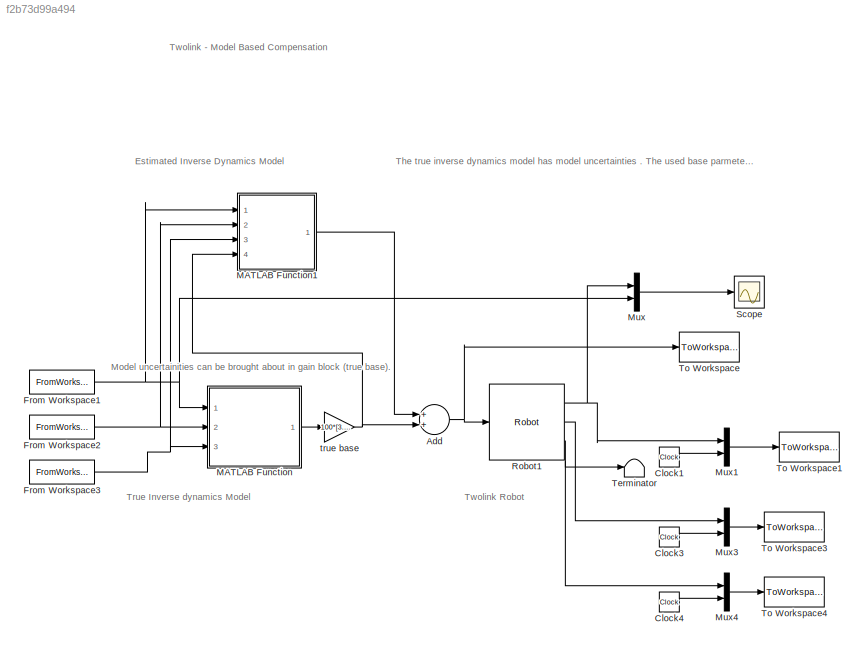
MODEL slx_f2b73d99a494
KIND model
CONFIG AbsTol = auto
CONFIG EnableMultiTasking = off
CONFIG FixedStep = auto
CONFIG MaxStep = auto
CONFIG MinStep = auto
CONFIG RelTol = 1e-3
CONFIG SampleTimeConstraint = Unconstrained
CONFIG Solver = VariableStepAuto
CONFIG SolverName = VariableStepAuto
CONFIG StartTime = 0.0
CONFIG StopTime = 20
BLOCK [Sum] Add
  InputSameDT = off
  OutDataTypeStr = Inherit: Inherit via internal rule
  Ports = [2, 1]
  SaturateOnIntegerOverflow = off
BLOCK [Clock] Clock1
BLOCK [Clock] Clock3
BLOCK [Clock] Clock4
BLOCK [FromWorkspace] From Workspace1
  SampleTime = 0
  VariableName = qdes
  ZeroCross = on
BLOCK [FromWorkspace] From Workspace2
  SampleTime = 0
  VariableName = qd_des
  ZeroCross = on
BLOCK [FromWorkspace] From Workspace3
  SampleTime = 0
  VariableName = qdd_des
  ZeroCross = on
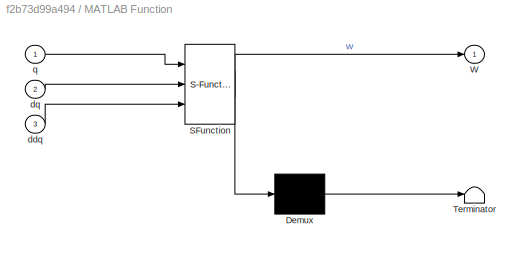
BLOCK [SubSystem] MATLAB Function
  ErrorFcn = Stateflow.Translate.translate
  PermitHierarchicalResolution = ExplicitOnly
  Ports = [3, 1]
  RequestExecContextInheritance = off
  SFBlockType = MATLAB Function
  TreatAsAtomicUnit = on
  Variant = off
BLOCK [Demux] MATLAB Function/ Demux 
  Outputs = 1
  Ports = [1, 1]
BLOCK [S-Function] MATLAB Function/ SFunction 
  EnableBusSupport = on
  FunctionName = sf_sfun
  PortCounts = [3 2]
  Ports = [3, 2]
  SFcnIsStateOwnerBlock = off
  SFunctionDeploymentMode = off
  Tag = Stateflow S-Function twolink_inv 2
BLOCK [Terminator] MATLAB Function/ Terminator 
BLOCK [Outport] MATLAB Function/W
  IconDisplay = Port number
BLOCK [Inport] MATLAB Function/ddq
  IconDisplay = Port number
  Port = 3
BLOCK [Inport] MATLAB Function/dq
  IconDisplay = Port number
  Port = 2
BLOCK [Inport] MATLAB Function/q
  IconDisplay = Port number
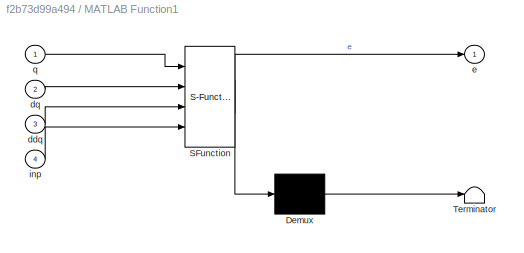
BLOCK [SubSystem] MATLAB Function1
  ErrorFcn = Stateflow.Translate.translate
  PermitHierarchicalResolution = ExplicitOnly
  Ports = [4, 1]
  RequestExecContextInheritance = off
  SFBlockType = MATLAB Function
  TreatAsAtomicUnit = on
  Variant = off
BLOCK [Demux] MATLAB Function1/ Demux 
  Outputs = 1
  Ports = [1, 1]
BLOCK [S-Function] MATLAB Function1/ SFunction 
  EnableBusSupport = on
  FunctionName = sf_sfun
  PortCounts = [4 2]
  Ports = [4, 2]
  SFcnIsStateOwnerBlock = off
  SFunctionDeploymentMode = off
  Tag = Stateflow S-Function twolink_inv 1
BLOCK [Terminator] MATLAB Function1/ Terminator 
BLOCK [Inport] MATLAB Function1/ddq
  IconDisplay = Port number
  Port = 3
BLOCK [Inport] MATLAB Function1/dq
  IconDisplay = Port number
  Port = 2
BLOCK [Outport] MATLAB Function1/e
  IconDisplay = Port number
BLOCK [Inport] MATLAB Function1/inp
  IconDisplay = Port number
  Port = 4
BLOCK [Inport] MATLAB Function1/q
  IconDisplay = Port number
BLOCK [Mux] Mux
  DisplayOption = bar
  Inputs = 2
  Ports = [2, 1]
BLOCK [Mux] Mux1
  DisplayOption = bar
  Inputs = 2
  Ports = [2, 1]
BLOCK [Mux] Mux3
  DisplayOption = bar
  Inputs = 2
  Ports = [2, 1]
BLOCK [Mux] Mux4
  DisplayOption = bar
  Inputs = 2
  Ports = [2, 1]
BLOCK [Reference] Robot1  REF=roblocks/Arm/Robot  (lib defined in mdl_2a292b13c81b, mdl_69400f8cfe22, +12 more)
  Ports = [1, 3]
  SourceBlock = roblocks/Arm/Robot
BLOCK [Scope] Scope
  NumInputPorts = 1
  Ports = [1]
  ScopeSpecificationString = Simulink.scopes.TimeScopeBlockCfg('CurrentConfiguration', extmgr.ConfigurationSet(extmgr.Configuration('Core','General UI',true),extmgr.Configuration('Core','Source UI',true),extmgr.Configuration('Sources','WiredSimulink',true),extmgr.Configuration('Visuals','Time Domain',true,'SerializedDisplays',{struct('MinYLimReal','-1.71325','MaxYLimReal','1.58226','YLabelReal','','MinYLimMag','0.00000','MaxY...<+1483ch>
BLOCK [Terminator] Terminator
BLOCK [ToWorkspace] To Workspace
  FixptAsFi = on
  MaxDataPoints = inf
  Ports = [1]
  SampleTime = h
  Save2DSignal = 2-D array (concatenate along first dimension)
  VariableName = u
BLOCK [ToWorkspace] To Workspace1
  FixptAsFi = on
  MaxDataPoints = inf
  Ports = [1]
  SampleTime = h
  Save2DSignal = 3-D array (concatenate along third dimension)
  SaveFormat = Timeseries
  VariableName = qm
BLOCK [ToWorkspace] To Workspace3
  FixptAsFi = on
  MaxDataPoints = inf
  Ports = [1]
  SampleTime = h
  Save2DSignal = 3-D array (concatenate along third dimension)
  SaveFormat = Timeseries
  VariableName = qd_m
BLOCK [ToWorkspace] To Workspace4
  FixptAsFi = on
  MaxDataPoints = inf
  Ports = [1]
  SampleTime = h
  Save2DSignal = 3-D array (concatenate along third dimension)
  SaveFormat = Timeseries
  VariableName = qdd_m
BLOCK [Gain] true base
  Gain = 100*[3.3500;-0.6000;0.1000;0.3500]
  Multiplication = Matrix(u*K)
  OutDataTypeStr = Inherit: Inherit via internal rule
  ParamDataTypeStr = Inherit: Inherit via internal rule
  SaturateOnIntegerOverflow = off
ANNOTATION (root): Twolink - Model Based Compensation
ANNOTATION (root): Estimated Inverse Dynamics Model
ANNOTATION (root): Model uncertainities can be brought about in gain block (true base).
ANNOTATION (root): The true inverse dynamics model has model uncertainties . The used base parmeters in the gain block is no way near the true values. The true values are (1.2500;-0.5000;0.000;0.2500). The uncertainities are compensated by the estimated inverse dynamics model.
ANNOTATION (root): True Inverse dynamics Model
ANNOTATION (root): Twolink Robot
NET Add:1 -> Robot1:1, To Workspace:1
LINE Clock1:1 -> Mux1:2
LINE Clock3:1 -> Mux3:2
LINE Clock4:1 -> Mux4:2
NET From Workspace1:1 -> MATLAB Function1:1, MATLAB Function:1, Mux:2
NET From Workspace2:1 -> MATLAB Function1:2, MATLAB Function:2
NET From Workspace3:1 -> MATLAB Function1:3, MATLAB Function:3
LINE MATLAB Function1:1 -> Add:1
LINE MATLAB Function:1 -> true base:1
LINE Mux1:1 -> To Workspace1:1
LINE Mux3:1 -> To Workspace3:1
LINE Mux4:1 -> To Workspace4:1
LINE Mux:1 -> Scope:1
NET Robot1:1 -> Mux1:1, Mux:1
LINE Robot1:2 -> Mux3:1
NET Robot1:3 -> Mux4:1, Terminator:1
NET true base:1 -> Add:2, MATLAB Function1:4
note: NET lines group one-source signal fan-out (src -> all destinations, sorted); 1:1 wires keep LINE
CHART MATLAB Function1 states=1 transitions=1
  STATE_LABEL 'eML_blk_kernel()'
  STATE_LABEL 'SCRIPT:\nfunction e = Regressor(q,dq,ddq,inp)\nx0 = ((dq(1))*(dq(1)));\nx1 = ddq(1) + ddq(2);\nx2 = sin(q(2));\nx3 = dq(1)*x2;\nx4 = dq(1) + dq(2);\nx5 = cos(q(2));\nx6 = ddq(1)*x5 - dq(2)*x3 + x3*x4;\nx7 = -((x4)*(x4));\nx8 = dq(1)*x5;\nx9 = ddq(1)*x2 + dq(2)*x8;\nx10 = x4*x8;\nx11 = x10 - x9;\nH = zeros(2,20);\n  H(1) = 0;\n  H(2) = 0;\n  H(3) = 0;\n  H(4) = 0;\n  H(5) = 0;\n  H(6) = ddq(1);\n  H(7) = 2*ddq(1);\n  H(...<+911ch>'
CHART MATLAB Function states=1 transitions=1
  STATE_LABEL 'eML_blk_kernel()'
  STATE_LABEL 'SCRIPT:\nfunction W = Regressor(q,dq,ddq)\nx0 = ((dq(1))*(dq(1)));\nx1 = ddq(1) + ddq(2);\nx2 = sin(q(2));\nx3 = dq(1)*x2;\nx4 = dq(1) + dq(2);\nx5 = cos(q(2));\nx6 = ddq(1)*x5 - dq(2)*x3 + x3*x4;\nx7 = -((x4)*(x4));\nx8 = dq(1)*x5;\nx9 = ddq(1)*x2 + dq(2)*x8;\nx10 = x4*x8;\nx11 = x10 - x9;\nH = zeros(2,20);\n  H(1) = 0;\n  H(2) = 0;\n  H(3) = 0;\n  H(4) = 0;\n  H(5) = 0;\n  H(6) = ddq(1);\n  H(7) = 2*ddq(1);\n  H(8) =...<+742ch>'
